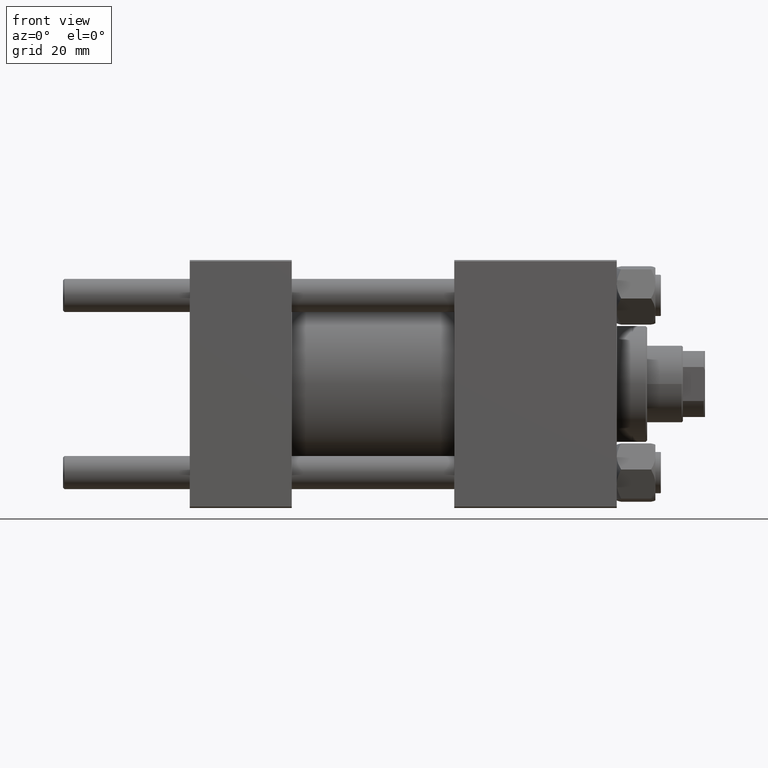
[diagram: clean part render]
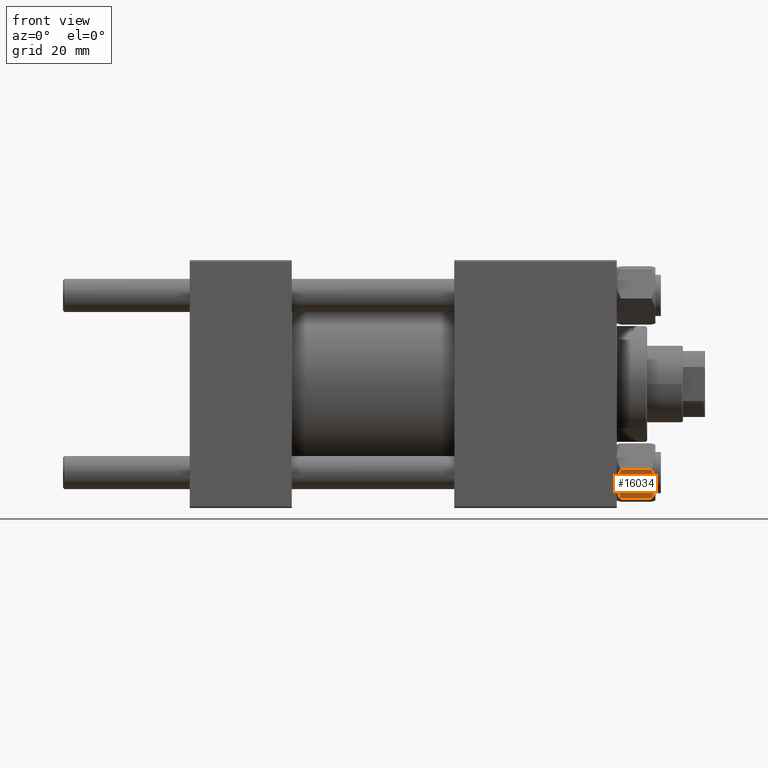
[diagram: same view with one face highlighted and labeled with its STEP entity id]
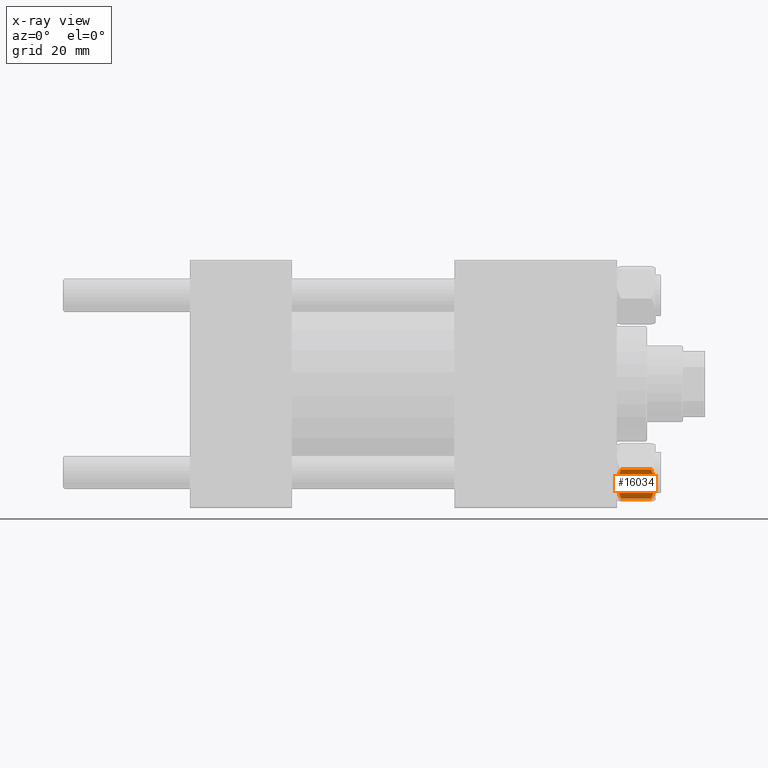
[diagram: x-ray of the same camera — body ghosted, the highlighted face saturated]
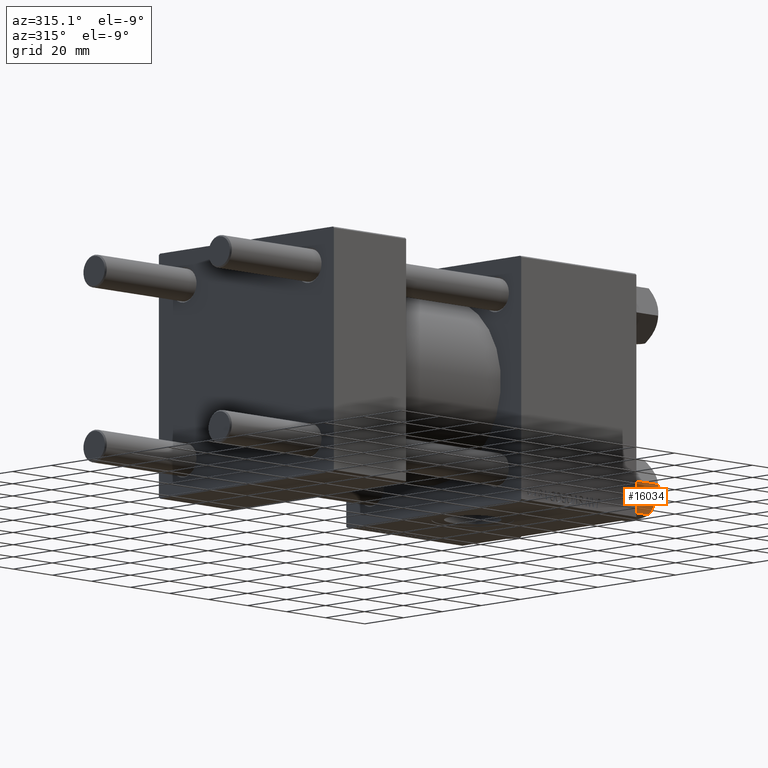
[diagram: same view with one face highlighted and labeled with its STEP entity id]
A machine part, front view. The second image highlights one B-rep face of the part: STEP entity #16034.
The next image is the same camera in x-ray: the body ghosted, the highlighted face saturated — about 0% of this face is hidden behind the body in this view.
A second angle (auxiliary view) of the same face is appended — the face is thin or edge-on in the first view.
In plain terms, the highlighted planar face has unit normal (-0, 0.9104, 0.4137).
Its self-contained STEP definition (entity closure, byte-faithful):
#1294 = CARTESIAN_POINT ( 'NONE',  ( 4.900668367960789418, 10.06321519197518732, -1.121556683709783231 ) ) ;
#1938 = CARTESIAN_POINT ( 'NONE',  ( -5.810000000000003162, 10.06321519197517667, -1.556784808024824107 ) ) ;
#3423 = CARTESIAN_POINT ( 'NONE',  ( -6.009258394948640858E-15, 10.06321519197518022, -14.00000000000000000 ) ) ;
#4955 = CARTESIAN_POINT ( 'NONE',  ( 4.908816193182378385, 10.06321519197518199, -12.89380709538398406 ) ) ;
#5341 = CARTESIAN_POINT ( 'NONE',  ( 3.958929922320414185, 10.06321519197518377, -0.7421398502354088489 ) ) ;
#5812 = ORIENTED_EDGE ( 'NONE', *, *, #38229, .F. ) ;
#6521 = CARTESIAN_POINT ( 'NONE',  ( -6.009258394948640858E-15, 10.06321519197518022, -14.00000000000000000 ) ) ;
#8292 = FACE_OUTER_BOUND ( 'NONE', #28981, .T. ) ;
#8301 = DIRECTION ( 'NONE',  ( -0.000000000000000000, -0.000000000000000000, 1.000000000000000000 ) ) ;
#8503 = CARTESIAN_POINT ( 'NONE',  ( -6.009258394948640858E-15, 10.06321519197518022, -14.00000000000000000 ) ) ;
#9528 = CARTESIAN_POINT ( 'NONE',  ( -1.018274738099091303, 10.06321519197518022, -0.04822742080071992093 ) ) ;
#11211 = VERTEX_POINT ( 'NONE', #3423 ) ;
#11666 = ORIENTED_EDGE ( 'NONE', *, *, #42358, .T. ) ;
#12013 = AXIS2_PLACEMENT_3D ( 'NONE', #32034, #47466, #28001 ) ;
#13829 = CARTESIAN_POINT ( 'NONE',  ( -4.908816193182384602, 10.06321519197518022, -1.106192904616017048 ) ) ;
#14580 = VECTOR ( 'NONE', #49181, 1000.000000000000000 ) ;
#16034 = ADVANCED_FACE ( 'NONE', ( #8292 ), #23714, .F. ) ;
#16342 = CARTESIAN_POINT ( 'NONE',  ( 0.2543996698847451055, 10.06321519197518199, -13.99999999999999289 ) ) ;
#16723 = CARTESIAN_POINT ( 'NONE',  ( 1.020132157807618345, 10.06321519197518022, -8.626183534837794653E-15 ) ) ;
#16968 = B_SPLINE_CURVE_WITH_KNOTS ( 'NONE', 3,
 ( #8503, #16342, #31750, #24180, #43380, #39584, #17098, #4955, #20390 ),
 .UNSPECIFIED., .F., .F.,
 ( 4, 2, 1, 2, 4 ),
 ( 0.02074012592819902273, 0.02149589804477578664, 0.02225167016135255055, 0.02376321439450608183, 0.02678630286081314094 ),
 .UNSPECIFIED. ) ;
#17098 = CARTESIAN_POINT ( 'NONE',  ( 3.960942496020599002, 10.06321519197518199, -13.28842716763894671 ) ) ;
#20390 = CARTESIAN_POINT ( 'NONE',  ( 5.809999999999994280, 10.06321519197518377, -12.44321519197517389 ) ) ;
#20437 = CARTESIAN_POINT ( 'NONE',  ( -5.810000000000003162, 10.06321519197517667, -14.00000000000000000 ) ) ;
#20645 = B_SPLINE_CURVE_WITH_KNOTS ( 'NONE', 3,
 ( #41387, #25735, #36605, #41137, #26219, #49236, #37589, #6521 ),
 .UNSPECIFIED., .F., .F.,
 ( 4, 2, 2, 4 ),
 ( 0.01467889604968878811, 0.01619420351931634763, 0.01770951098894390716, 0.02074012592819902273 ),
 .UNSPECIFIED. ) ;
#20776 = CARTESIAN_POINT ( 'NONE',  ( -6.009258394948640858E-15, 10.06321519197518022, 0.000000000000000000 ) ) ;
#21024 = CARTESIAN_POINT ( 'NONE',  ( -5.810000000000004050, 10.06321519197517667, -12.44321519197517745 ) ) ;
#21168 = CARTESIAN_POINT ( 'NONE',  ( -3.960942496020607884, 10.06321519197517844, -0.7115728323610508443 ) ) ;
#22452 = VERTEX_POINT ( 'NONE', #21024 ) ;
#23170 = EDGE_CURVE ( 'NONE', #36172, #41587, #34362, .T. ) ;
#23581 = CARTESIAN_POINT ( 'NONE',  ( 5.809999999999995168, 10.06321519197518377, -1.556784808024826106 ) ) ;
#23714 = PLANE ( 'NONE',  #12013 ) ;
#23810 = B_SPLINE_CURVE_WITH_KNOTS ( 'NONE', 3,
 ( #32271, #47711, #40100, #9528, #24953, #43906, #21168, #13829, #1938 ),
 .UNSPECIFIED., .F., .F.,
 ( 4, 2, 1, 2, 4 ),
 ( 0.02074012592819901926, 0.02149589804477578317, 0.02225167016135255055, 0.02376321439450607836, 0.02678630286081313747 ),
 .UNSPECIFIED. ) ;
#24180 = CARTESIAN_POINT ( 'NONE',  ( 1.018274738099081977, 10.06321519197517844, -13.95177257919928415 ) ) ;
#24567 = CARTESIAN_POINT ( 'NONE',  ( 5.359707691559670195, 10.06321519197518199, -1.331638653804663619 ) ) ;
#24813 = CARTESIAN_POINT ( 'NONE',  ( 5.809999999999995168, 10.06321519197518377, -1.556784808024826106 ) ) ;
#24953 = CARTESIAN_POINT ( 'NONE',  ( -1.772424303831134917, 10.06321519197518022, -0.1338870921722490892 ) ) ;
#25735 = CARTESIAN_POINT ( 'NONE',  ( -5.359707691559678189, 10.06321519197518022, -12.66836134619534171 ) ) ;
#26027 = ORIENTED_EDGE ( 'NONE', *, *, #39377, .F. ) ;
#26219 = CARTESIAN_POINT ( 'NONE',  ( -3.474497094393259378, 10.06321519197517844, -13.42730390989571809 ) ) ;
#26650 = CARTESIAN_POINT ( 'NONE',  ( -5.810000000000003162, 10.06321519197517667, -1.556784808024824107 ) ) ;
#28001 = DIRECTION ( 'NONE',  ( 1.000000000000000000, 5.971509383741162381E-16, 0.000000000000000000 ) ) ;
#28981 = EDGE_LOOP ( 'NONE', ( #5812, #11666, #32586, #39438, #34411, #26027 ) ) ;
#31750 = CARTESIAN_POINT ( 'NONE',  ( 0.5112014849988854026, 10.06321519197518022, -13.99019602057108003 ) ) ;
#32034 = CARTESIAN_POINT ( 'NONE',  ( -5.810000000000003162, 10.06321519197517667, -14.00000000000000000 ) ) ;
#32271 = CARTESIAN_POINT ( 'NONE',  ( -6.009258394948640858E-15, 10.06321519197518022, 0.000000000000000000 ) ) ;
#32586 = ORIENTED_EDGE ( 'NONE', *, *, #34850, .F. ) ;
#33256 = CARTESIAN_POINT ( 'NONE',  ( 5.809999999999995168, 10.06321519197518377, -14.00000000000000000 ) ) ;
#33984 = LINE ( 'NONE', #33256, #14580 ) ;
#34362 = B_SPLINE_CURVE_WITH_KNOTS ( 'NONE', 3,
 ( #24813, #24567, #1294, #5341, #39965, #35166, #16723, #20776 ),
 .UNSPECIFIED., .F., .F.,
 ( 4, 2, 2, 4 ),
 ( 0.01467889604968878464, 0.01619420351931634416, 0.01770951098894390369, 0.02074012592819901926 ),
 .UNSPECIFIED. ) ;
#34411 = ORIENTED_EDGE ( 'NONE', *, *, #46562, .F. ) ;
#34850 = EDGE_CURVE ( 'NONE', #41587, #49275, #23810, .T. ) ;
#35166 = CARTESIAN_POINT ( 'NONE',  ( 2.013954290287958138, 10.06321519197518377, -0.1570111679760076706 ) ) ;
#36172 = VERTEX_POINT ( 'NONE', #23581 ) ;
#36605 = CARTESIAN_POINT ( 'NONE',  ( -4.900668367960797411, 10.06321519197517667, -12.87844331629021966 ) ) ;
#37589 = CARTESIAN_POINT ( 'NONE',  ( -1.020132157807628781, 10.06321519197518022, -13.99999999999999467 ) ) ;
#38229 = EDGE_CURVE ( 'NONE', #22452, #11211, #20645, .T. ) ;
#39377 = EDGE_CURVE ( 'NONE', #11211, #42581, #16968, .T. ) ;
#39438 = ORIENTED_EDGE ( 'NONE', *, *, #23170, .F. ) ;
#39584 = CARTESIAN_POINT ( 'NONE',  ( 2.508586450168036386, 10.06321519197518199, -13.70242473679676287 ) ) ;
#39965 = CARTESIAN_POINT ( 'NONE',  ( 3.474497094393246055, 10.06321519197518199, -0.5726960901042849050 ) ) ;
#40100 = CARTESIAN_POINT ( 'NONE',  ( -0.5112014849988953946, 10.06321519197518199, -0.009803979428924322267 ) ) ;
#41137 = CARTESIAN_POINT ( 'NONE',  ( -3.958929922320423067, 10.06321519197517489, -13.25786014976459626 ) ) ;
#41387 = CARTESIAN_POINT ( 'NONE',  ( -5.810000000000004050, 10.06321519197517667, -12.44321519197517745 ) ) ;
#41587 = VERTEX_POINT ( 'NONE', #43801 ) ;
#42358 = EDGE_CURVE ( 'NONE', #22452, #49275, #43175, .T. ) ;
#42581 = VERTEX_POINT ( 'NONE', #45920 ) ;
#43175 = LINE ( 'NONE', #20437, #44315 ) ;
#43380 = CARTESIAN_POINT ( 'NONE',  ( 1.772424303831120707, 10.06321519197518022, -13.86611290782775541 ) ) ;
#43801 = CARTESIAN_POINT ( 'NONE',  ( -6.009258394948640858E-15, 10.06321519197518022, 0.000000000000000000 ) ) ;
#43906 = CARTESIAN_POINT ( 'NONE',  ( -2.508586450168046156, 10.06321519197518022, -0.2975752632032391820 ) ) ;
#44315 = VECTOR ( 'NONE', #8301, 1000.000000000000000 ) ;
#45920 = CARTESIAN_POINT ( 'NONE',  ( 5.809999999999994280, 10.06321519197518377, -12.44321519197517389 ) ) ;
#46562 = EDGE_CURVE ( 'NONE', #42581, #36172, #33984, .T. ) ;
#47466 = DIRECTION ( 'NONE',  ( 5.971509383741162381E-16, -1.000000000000000000, 0.000000000000000000 ) ) ;
#47711 = CARTESIAN_POINT ( 'NONE',  ( -0.2543996698847555971, 10.06321519197517844, -8.687169907040107433E-15 ) ) ;
#49181 = DIRECTION ( 'NONE',  ( -0.000000000000000000, -0.000000000000000000, 1.000000000000000000 ) ) ;
#49236 = CARTESIAN_POINT ( 'NONE',  ( -2.013954290287971460, 10.06321519197518022, -13.84298883202399466 ) ) ;
#49275 = VERTEX_POINT ( 'NONE', #26650 ) ;